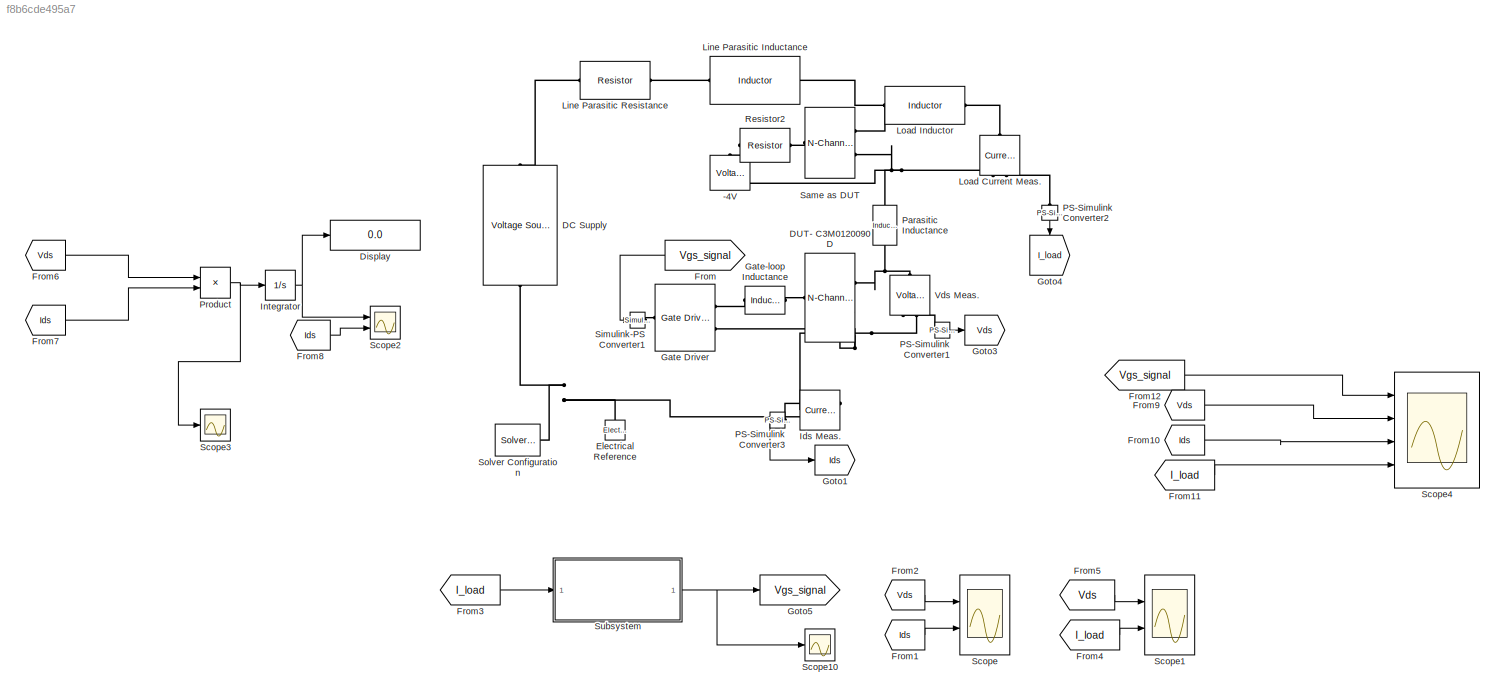
MODEL slx_f8b6cde495a7
KIND model
CONFIG AbsTol = auto
CONFIG EnableMultiTasking = off
CONFIG FixedStep = 1e-9
CONFIG MaxStep = auto
CONFIG MinStep = auto
CONFIG RelTol = 1e-3
CONFIG SampleTimeConstraint = Unconstrained
CONFIG SolverName = VariableStepAuto
CONFIG StartTime = 0.0
CONFIG StopTime = sim_time
BLOCK [Reference] -4V  REF=ee_lib/Sources/Voltage Source
  NameLocation = right
  Ports = [0, 0, 0, 0, 0, 1, 1]
  SourceBlock = ee_lib/Sources/Voltage Source
  SourceProductBaseCode = PS
  SourceType = Voltage Source
BLOCK [Reference] DC Supply  REF=ee_lib/Sources/Voltage Source
  NameLocation = right
  Ports = [0, 0, 0, 0, 0, 1, 1]
  SourceBlock = ee_lib/Sources/Voltage Source
  SourceProductBaseCode = PS
  SourceType = Voltage Source
BLOCK [Reference] DUT- C3M0120090D  REF=ee_lib/Semiconductors &
Converters/N-Channel MOSFET
  NameLocation = top
  Ports = [0, 0, 0, 0, 0, 1, 2]
  SourceBlock = ee_lib/Semiconductors &\nConverters/N-Channel MOSFET
  SourceProductBaseCode = PS
  SourceType = N-Channel MOSFET
BLOCK [Display] Display
  Decimation = 1
  Ports = [1]
BLOCK [Reference] Electrical Reference  REF=fl_lib/Electrical/Electrical Elements/Electrical Reference
  NameLocation = right
  Ports = [0, 0, 0, 0, 0, 1]
  SourceBlock = fl_lib/Electrical/Electrical Elements/Electrical Reference
  SourceProductBaseCode = SS
  SourceType = Electrical Reference
BLOCK [From] From
  GotoTag = Vgs_signal
  NameLocation = top
BLOCK [From] From1
  GotoTag = Ids
BLOCK [From] From10
  GotoTag = Ids
BLOCK [From] From11
  GotoTag = I_load
BLOCK [From] From12
  GotoTag = Vgs_signal
BLOCK [From] From2
  GotoTag = Vds
BLOCK [From] From3
  GotoTag = I_load
BLOCK [From] From4
  GotoTag = I_load
BLOCK [From] From5
  GotoTag = Vds
BLOCK [From] From6
  GotoTag = Vds
BLOCK [From] From7
  GotoTag = Ids
BLOCK [From] From8
  GotoTag = Ids
BLOCK [From] From9
  GotoTag = Vds
BLOCK [Reference] Gate Driver  REF=ee_lib/Semiconductors &
Converters/Gate Driver
  Ports = [0, 0, 0, 0, 0, 1, 2]
  SourceBlock = ee_lib/Semiconductors &\nConverters/Gate Driver
  SourceProductBaseCode = PS
  SourceType = Gate Driver
BLOCK [Reference] Gate-loop Inductance  REF=ee_lib/Passive/Inductor
  Ports = [0, 0, 0, 0, 0, 1, 1]
  SourceBlock = ee_lib/Passive/Inductor
  SourceProductBaseCode = PS
  SourceType = Inductor
BLOCK [Goto] Goto1
  GotoTag = Ids
BLOCK [Goto] Goto3
  GotoTag = Vds
BLOCK [Goto] Goto4
  GotoTag = I_load
  NameLocation = left
BLOCK [Goto] Goto5
  GotoTag = Vgs_signal
BLOCK [Reference] Ids Meas.  REF=fl_lib/Electrical/Electrical Sensors/Current Sensor
  NameLocation = top
  Ports = [0, 0, 0, 0, 0, 1, 2]
  SourceBlock = fl_lib/Electrical/Electrical Sensors/Current Sensor
  SourceProductBaseCode = SS
  SourceType = Current Sensor
BLOCK [Integrator] Integrator
  Ports = [1, 1]
BLOCK [Reference] Line Parasitic Inductance  REF=ee_lib/Passive/Inductor
  NameLocation = top
  Ports = [0, 0, 0, 0, 0, 1, 1]
  SourceBlock = ee_lib/Passive/Inductor
  SourceProductBaseCode = PS
  SourceType = Inductor
BLOCK [Reference] Line Parasitic Resistance   REF=ee_lib/Passive/Resistor
  Ports = [0, 0, 0, 0, 0, 1, 1]
  SourceBlock = ee_lib/Passive/Resistor
  SourceProductBaseCode = PS
  SourceType = Resistor
BLOCK [Reference] Load Current Meas.  REF=fl_lib/Electrical/Electrical Sensors/Current Sensor
  NameLocation = left
  Ports = [0, 0, 0, 0, 0, 1, 2]
  SourceBlock = fl_lib/Electrical/Electrical Sensors/Current Sensor
  SourceProductBaseCode = SS
  SourceType = Current Sensor
BLOCK [Reference] Load Inductor  REF=ee_lib/Passive/Inductor
  Ports = [0, 0, 0, 0, 0, 1, 1]
  SourceBlock = ee_lib/Passive/Inductor
  SourceProductBaseCode = PS
  SourceType = Inductor
BLOCK [Reference] PS-Simulink Converter1  REF=nesl_utility/PS-Simulink
Converter
  Ports = [0, 1, 0, 0, 0, 1]
  SourceBlock = nesl_utility/PS-Simulink\nConverter
  SourceProductBaseCode = SS
  SourceType = PS-Simulink\nConverter
BLOCK [Reference] PS-Simulink Converter2  REF=nesl_utility/PS-Simulink
Converter
  NameLocation = left
  Ports = [0, 1, 0, 0, 0, 1]
  SourceBlock = nesl_utility/PS-Simulink\nConverter
  SourceProductBaseCode = SS
  SourceType = PS-Simulink\nConverter
BLOCK [Reference] PS-Simulink Converter3  REF=nesl_utility/PS-Simulink
Converter
  NameLocation = top
  Ports = [0, 1, 0, 0, 0, 1]
  SourceBlock = nesl_utility/PS-Simulink\nConverter
  SourceProductBaseCode = SS
  SourceType = PS-Simulink\nConverter
BLOCK [Reference] Parasitic Inductance  REF=ee_lib/Passive/Inductor
  NameLocation = right
  Ports = [0, 0, 0, 0, 0, 1, 1]
  SourceBlock = ee_lib/Passive/Inductor
  SourceProductBaseCode = PS
  SourceType = Inductor
BLOCK [Product] Product
  Ports = [2, 1]
BLOCK [Reference] Resistor2  REF=ee_lib/Passive/Resistor
  Ports = [0, 0, 0, 0, 0, 1, 1]
  SourceBlock = ee_lib/Passive/Resistor
  SourceProductBaseCode = PS
  SourceType = Resistor
BLOCK [Reference] Same as DUT  REF=ee_lib/Semiconductors &
Converters/N-Channel MOSFET
  Ports = [0, 0, 0, 0, 0, 1, 2]
  SourceBlock = ee_lib/Semiconductors &\nConverters/N-Channel MOSFET
  SourceProductBaseCode = PS
  SourceType = N-Channel MOSFET
BLOCK [Scope] Scope
  Floating = off
  NumInputPorts = 2
  Ports = [2]
  ScopeSpecificationString = Simulink.scopes.TimeScopeBlockCfg('CurrentConfiguration', extmgr.ConfigurationSet(extmgr.Configuration('Core','General UI',true,'FigureColor',[1 1 1]),extmgr.Configuration('Core','Source UI',true),extmgr.Configuration('Sources','WiredSimulink',true),extmgr.Configuration('Visuals','Time Domain',true,'SerializedDisplays',{struct('MinYLimReal','-30.24864','MaxYLimReal','652.4022','YLabelReal','','Min...<+2303ch>
BLOCK [Scope] Scope1
  Floating = off
  NumInputPorts = 2
  Ports = [2]
  ScopeSpecificationString = Simulink.scopes.TimeScopeBlockCfg('CurrentConfiguration', extmgr.ConfigurationSet(extmgr.Configuration('Core','General UI',true),extmgr.Configuration('Core','Source UI',true),extmgr.Configuration('Sources','WiredSimulink',true,'DataLoggingVariableName','ScopeData1'),extmgr.Configuration('Visuals','Time Domain',true,'SerializedDisplays',{struct('MinYLimReal','-90.63328','MaxYLimReal','815.69949','Y...<+2118ch>
BLOCK [Scope] Scope10
  Floating = off
  NumInputPorts = 1
  Ports = [1]
  ScopeSpecificationString = Simulink.scopes.TimeScopeBlockCfg('CurrentConfiguration', extmgr.ConfigurationSet(extmgr.Configuration('Core','General UI',true),extmgr.Configuration('Core','Source UI',true),extmgr.Configuration('Sources','WiredSimulink',true,'DataLoggingVariableName','ScopeData10'),extmgr.Configuration('Visuals','Time Domain',true,'SerializedDisplays',{struct('MinYLimReal','-0.125','MaxYLimReal','1.125','YLabelR...<+1428ch>
BLOCK [Scope] Scope2
  Floating = off
  NumInputPorts = 2
  Ports = [2]
  ScopeSpecificationString = Simulink.scopes.TimeScopeBlockCfg('CurrentConfiguration', extmgr.ConfigurationSet(extmgr.Configuration('Core','General UI',true),extmgr.Configuration('Core','Source UI',true),extmgr.Configuration('Sources','WiredSimulink',true,'DataLoggingVariableName','ScopeData2'),extmgr.Configuration('Visuals','Time Domain',true,'SerializedDisplays',{struct('MinYLimReal','0.000262','MaxYLimReal','0.000339','YLa...<+2479ch>
BLOCK [Scope] Scope3
  Floating = off
  NumInputPorts = 1
  Ports = [1]
  ScopeSpecificationString = Simulink.scopes.TimeScopeBlockCfg('CurrentConfiguration', extmgr.ConfigurationSet(extmgr.Configuration('Core','General UI',true),extmgr.Configuration('Core','Source UI',true),extmgr.Configuration('Sources','WiredSimulink',true,'DataLoggingVariableName','ScopeData3'),extmgr.Configuration('Visuals','Time Domain',true,'SerializedDisplays',{struct('MinYLimReal','-2.80074','MaxYLimReal','2.08548','YLab...<+1412ch>
BLOCK [Scope] Scope4
  Floating = off
  NumInputPorts = 4
  Ports = [4]
  ScopeSpecificationString = Simulink.scopes.TimeScopeBlockCfg('CurrentConfiguration', extmgr.ConfigurationSet(extmgr.Configuration('Core','General UI',true,'FigureColor',[1 1 1]),extmgr.Configuration('Core','Source UI',true),extmgr.Configuration('Sources','WiredSimulink',true,'DataLoggingVariableName','ScopeData1','DataLogging',true,'DataLoggingLimitDataPoints',true,'DataLoggingMaxPoints','10000','DataLoggingSaveFormat','Str...<+4118ch>
BLOCK [Reference] Simulink-PS Converter1  REF=nesl_utility/Simulink-PS
Converter
  Ports = [1, 0, 0, 0, 0, 0, 1]
  SourceBlock = nesl_utility/Simulink-PS\nConverter
  SourceProductBaseCode = SS
  SourceType = Simulink-PS\nConverter
BLOCK [Reference] Solver Configuration  REF=nesl_utility/Solver
Configuration
  Ports = [0, 0, 0, 0, 0, 0, 1]
  SourceBlock = nesl_utility/Solver\nConfiguration
  SourceProductBaseCode = SS
  SourceType = Solver\nConfiguration
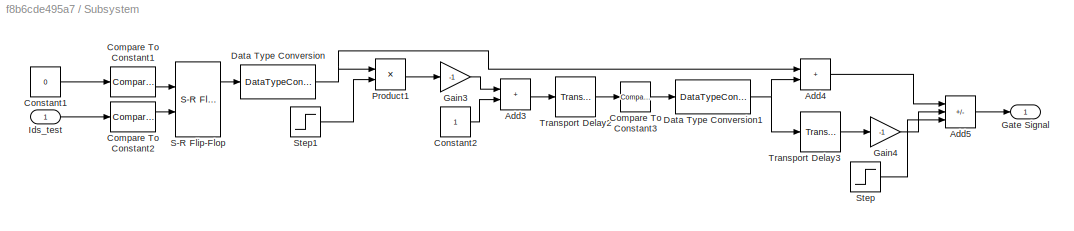
BLOCK [SubSystem] Subsystem
  Ports = [1, 1]
  RequestExecContextInheritance = off
BLOCK [Sum] Subsystem/Add3
  IconShape = rectangular
  Ports = [2, 1]
BLOCK [Sum] Subsystem/Add4
  IconShape = rectangular
  Ports = [2, 1]
BLOCK [Sum] Subsystem/Add5
  IconShape = rectangular
  Inputs = ++-
  Ports = [3, 1]
BLOCK [Reference] Subsystem/Compare To Constant1  REF=simulink/Logic and Bit
Operations/Compare
To Constant
  Ports = [1, 1]
  SourceBlock = simulink/Logic and Bit\nOperations/Compare\nTo Constant
  SourceProductBaseCode = SL
  SourceType = Compare To Constant
BLOCK [Reference] Subsystem/Compare To Constant2  REF=simulink/Logic and Bit
Operations/Compare
To Constant
  Ports = [1, 1]
  SourceBlock = simulink/Logic and Bit\nOperations/Compare\nTo Constant
  SourceProductBaseCode = SL
  SourceType = Compare To Constant
BLOCK [Reference] Subsystem/Compare To Constant3  REF=simulink/Logic and Bit
Operations/Compare
To Constant
  Ports = [1, 1]
  SourceBlock = simulink/Logic and Bit\nOperations/Compare\nTo Constant
  SourceProductBaseCode = SL
  SourceType = Compare To Constant
BLOCK [Constant] Subsystem/Constant1
  Value = 0
BLOCK [Constant] Subsystem/Constant2
BLOCK [DataTypeConversion] Subsystem/Data Type Conversion
  RndMeth = Floor
  SaturateOnIntegerOverflow = off
BLOCK [DataTypeConversion] Subsystem/Data Type Conversion1
  RndMeth = Floor
  SaturateOnIntegerOverflow = off
BLOCK [Gain] Subsystem/Gain3
  Gain = -1
BLOCK [Gain] Subsystem/Gain4
  Gain = -1
BLOCK [Outport] Subsystem/Gate Signal
BLOCK [Inport] Subsystem/Ids_test
BLOCK [Product] Subsystem/Product1
  Ports = [2, 1]
BLOCK [Reference] Subsystem/S-R Flip-Flop  REF=simulink_extras/Flip Flops/S-R
Flip-Flop
  Ports = [2, 2]
  SourceBlock = simulink_extras/Flip Flops/S-R\nFlip-Flop
  SourceProductBaseCode = SL
  SourceType = SRFlipFlop
BLOCK [Step] Subsystem/Step
  After = 0
  Before = 1
  SampleTime = 0
  Time = 1e-5
BLOCK [Step] Subsystem/Step1
  After = 0
  Before = 1
  SampleTime = 0
BLOCK [TransportDelay] Subsystem/Transport Delay2
  DelayTime = tp
  Ports = [1, 1]
BLOCK [TransportDelay] Subsystem/Transport Delay3
  DelayTime = tp
  Ports = [1, 1]
BLOCK [Reference] Vds Meas.  REF=fl_lib/Electrical/Electrical Sensors/Voltage Sensor
  NameLocation = right
  Ports = [0, 0, 0, 0, 0, 1, 2]
  SourceBlock = fl_lib/Electrical/Electrical Sensors/Voltage Sensor
  SourceProductBaseCode = SS
  SourceType = Voltage Sensor
LINE From10:1 -> Scope4:3
LINE From11:1 -> Scope4:4
LINE From12:1 -> Scope4:1
LINE From1:1 -> Scope:2
LINE From2:1 -> Scope:1
LINE From3:1 -> Subsystem:1
LINE From4:1 -> Scope1:2
LINE From5:1 -> Scope1:1
LINE From6:1 -> Product:1
LINE From7:1 -> Product:2
LINE From8:1 -> Scope2:2
LINE From9:1 -> Scope4:2
LINE From:1 -> Simulink-PS Converter1:1
NET Integrator:1 -> Display:1, Scope2:1
LINE PS-Simulink Converter1:1 -> Goto3:1
LINE PS-Simulink Converter2:1 -> Goto4:1
LINE PS-Simulink Converter3:1 -> Goto1:1
NET Product:1 -> Integrator:1, Scope3:1
LINE Subsystem/Add3:1 -> Subsystem/Transport Delay2:1
LINE Subsystem/Add4:1 -> Subsystem/Add5:1
LINE Subsystem/Add5:1 -> Subsystem/Gate Signal:1
LINE Subsystem/Compare To Constant1:1 -> Subsystem/S-R Flip-Flop:1
LINE Subsystem/Compare To Constant2:1 -> Subsystem/S-R Flip-Flop:2
LINE Subsystem/Compare To Constant3:1 -> Subsystem/Data Type Conversion1:1
LINE Subsystem/Constant1:1 -> Subsystem/Compare To Constant1:1
LINE Subsystem/Constant2:1 -> Subsystem/Add3:2
NET Subsystem/Data Type Conversion1:1 -> Subsystem/Add4:2, Subsystem/Transport Delay3:1
NET Subsystem/Data Type Conversion:1 -> Subsystem/Add4:1, Subsystem/Product1:1
LINE Subsystem/Gain3:1 -> Subsystem/Add3:1
LINE Subsystem/Gain4:1 -> Subsystem/Add5:2
LINE Subsystem/Ids_test:1 -> Subsystem/Compare To Constant2:1
LINE Subsystem/Product1:1 -> Subsystem/Gain3:1
LINE Subsystem/S-R Flip-Flop:1 -> Subsystem/Data Type Conversion:1
LINE Subsystem/Step1:1 -> Subsystem/Product1:2
LINE Subsystem/Step:1 -> Subsystem/Add5:3
LINE Subsystem/Transport Delay2:1 -> Subsystem/Compare To Constant3:1
LINE Subsystem/Transport Delay3:1 -> Subsystem/Gain4:1
NET Subsystem:1 -> Goto5:1, Scope10:1
PLINE -4V:LConn1 -- Resistor2:LConn1
PNET net1: -4V:RConn1 -- Load Current Meas.:RConn2 -- Parasitic Inductance:RConn1 -- Same as DUT:RConn2
PLINE DC Supply:LConn1 -- Line Parasitic Resistance :LConn1
PNET net2: DC Supply:RConn1 -- Electrical Reference:LConn1 -- Ids Meas.:RConn2 -- Solver Configuration:RConn1
PLINE DUT- C3M0120090D:LConn1 -- Gate-loop Inductance:RConn1
PNET net3: DUT- C3M0120090D:RConn1 -- Parasitic Inductance:LConn1 -- Vds Meas.:LConn1
PNET net4: DUT- C3M0120090D:RConn2 -- Gate Driver:RConn2 -- Ids Meas.:LConn1 -- Vds Meas.:RConn2
PLINE Gate Driver:LConn1 -- Simulink-PS Converter1:RConn1
PLINE Gate Driver:RConn1 -- Gate-loop Inductance:LConn1
PLINE Ids Meas.:RConn1 -- PS-Simulink Converter3:LConn1
PLINE Line Parasitic Inductance:LConn1 -- Line Parasitic Resistance :RConn1
PNET net5: Line Parasitic Inductance:RConn1 -- Load Inductor:LConn1 -- Same as DUT:RConn1
PLINE Load Current Meas.:LConn1 -- Load Inductor:RConn1
PLINE Load Current Meas.:RConn1 -- PS-Simulink Converter2:LConn1
PLINE PS-Simulink Converter1:LConn1 -- Vds Meas.:RConn1
PLINE Resistor2:RConn1 -- Same as DUT:LConn1
note: NET lines group one-source signal fan-out (src -> all destinations, sorted); 1:1 wires keep LINE; PNET lines group multi-terminal physical nets as a canonical sorted terminal list (undirected conserving connections); 2-terminal nets keep the pairwise PLINE form
